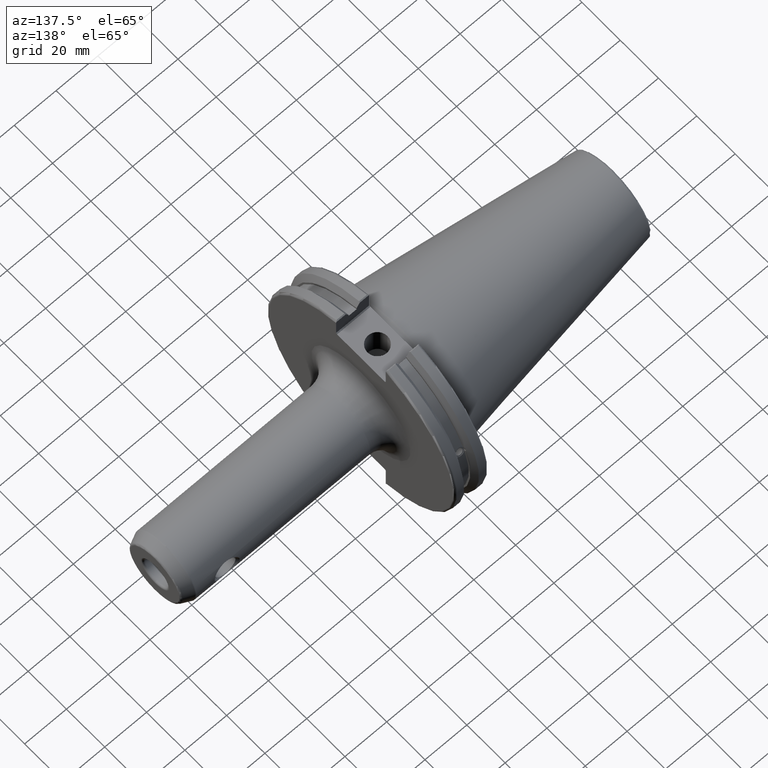
[diagram: clean part render]
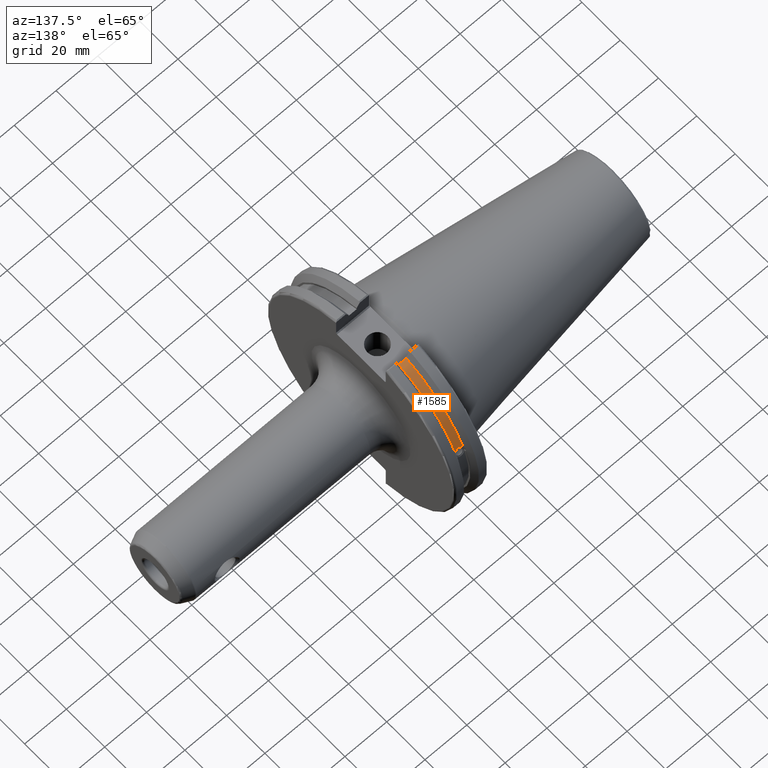
[diagram: same view with one face highlighted and labeled with its STEP entity id]
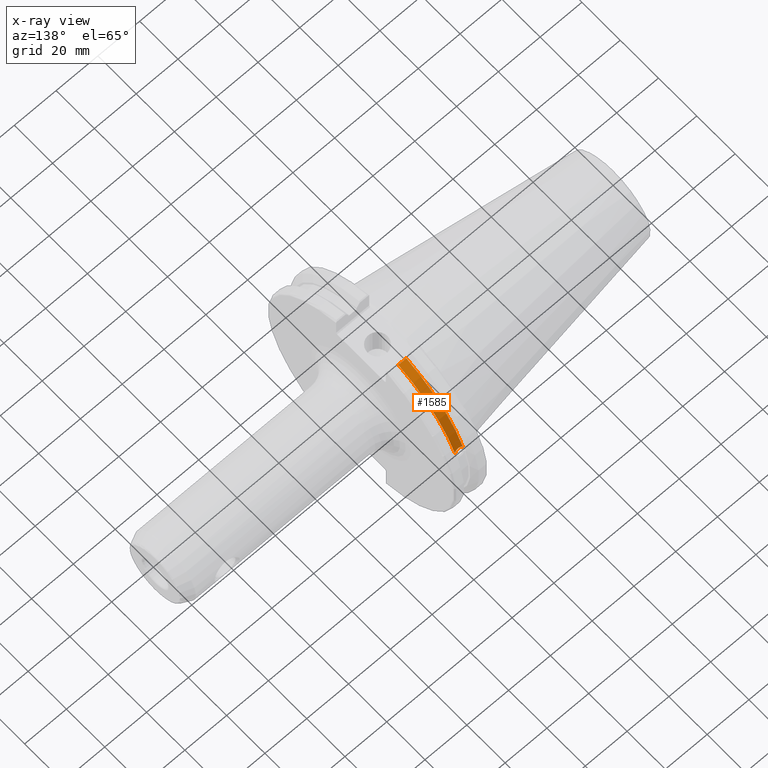
[diagram: x-ray of the same camera — body ghosted, the highlighted face saturated]
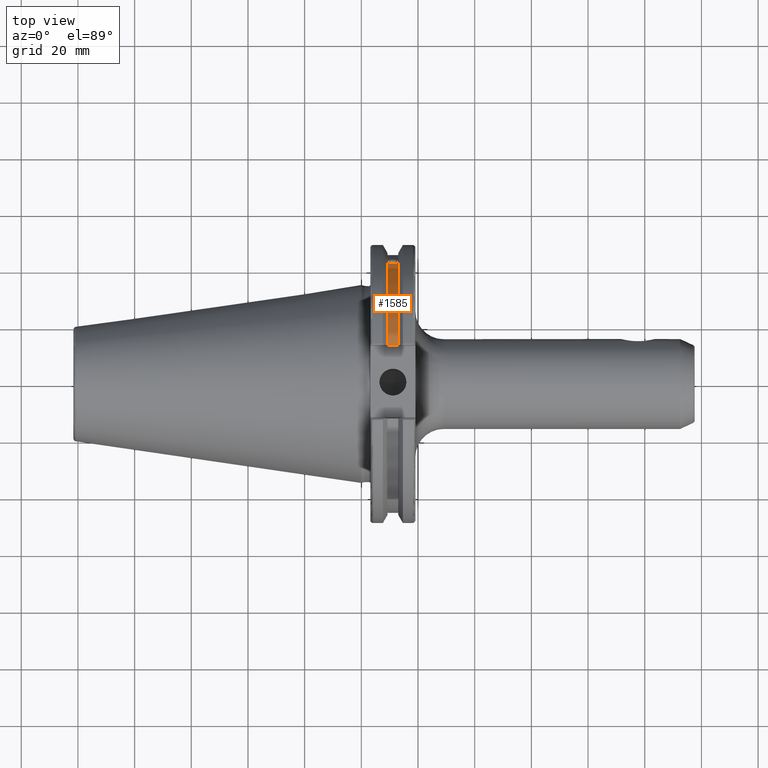
[diagram: same view with one face highlighted and labeled with its STEP entity id]
A machine part, auxiliary view. The second image highlights one B-rep face of the part: STEP entity #1585.
The next image is the same camera in x-ray: the body ghosted, the highlighted face saturated — about 0% of this face is hidden behind the body in this view.
A second angle (top view) of the same face is appended — the face is thin or edge-on in the first view.
In plain terms, the highlighted cylindrical surface (partial cylindrical patch) has radius 45.6435 mm, axis along (1, 0, 0).
Its self-contained STEP definition (entity closure, byte-faithful):
#192=FACE_OUTER_BOUND('',#299,.T.);
#299=EDGE_LOOP('',(#1434,#1435,#1436,#1437));
#336=B_SPLINE_CURVE_WITH_KNOTS('',3,(#2848,#2849,#2850,#2851,#2852,#2853,
#2854,#2855,#2856,#2857,#2858,#2859,#2860,#2861,#2862),.UNSPECIFIED.,.F.,
 .F.,(4,2,2,3,2,2,4),(-0.231381164054416,-0.158232381135623,-0.0791161905678115,
0.,0.0791161905678115,0.158232381135623,0.231381164054563),
 .UNSPECIFIED.);
#436=LINE('',#3199,#530);
#530=VECTOR('',#2147,10.);
#615=CIRCLE('',#1771,45.6435);
#616=CIRCLE('',#1773,45.6435);
#702=VERTEX_POINT('',#2845);
#703=VERTEX_POINT('',#2847);
#771=VERTEX_POINT('',#3196);
#772=VERTEX_POINT('',#3198);
#882=EDGE_CURVE('',#703,#702,#336,.T.);
#989=EDGE_CURVE('',#772,#771,#436,.T.);
#1003=EDGE_CURVE('',#703,#771,#615,.T.);
#1004=EDGE_CURVE('',#702,#772,#616,.T.);
#1434=ORIENTED_EDGE('',*,*,#882,.T.);
#1435=ORIENTED_EDGE('',*,*,#1004,.T.);
#1436=ORIENTED_EDGE('',*,*,#989,.T.);
#1437=ORIENTED_EDGE('',*,*,#1003,.F.);
#1505=CYLINDRICAL_SURFACE('',#1772,45.6435);
#1585=ADVANCED_FACE('',(#192),#1505,.T.);
#1771=AXIS2_PLACEMENT_3D('',#3230,#2186,#2187);
#1772=AXIS2_PLACEMENT_3D('',#3231,#2188,#2189);
#1773=AXIS2_PLACEMENT_3D('',#3232,#2190,#2191);
#2147=DIRECTION('',(1.,0.,0.));
#2186=DIRECTION('center_axis',(1.,0.,0.));
#2187=DIRECTION('ref_axis',(0.,0.,-1.));
#2188=DIRECTION('center_axis',(1.,0.,0.));
#2189=DIRECTION('ref_axis',(0.,1.,0.));
#2190=DIRECTION('center_axis',(1.,0.,0.));
#2191=DIRECTION('ref_axis',(0.,0.,-1.));
#2845=CARTESIAN_POINT('',(9.2191,42.5884454651059,16.4180816515115));
#2847=CARTESIAN_POINT('',(13.0491,42.5884454651059,16.4180816515115));
#2848=CARTESIAN_POINT('Ctrl Pts',(13.0491,42.5884454651059,16.4180816515115));
#2849=CARTESIAN_POINT('Ctrl Pts',(12.9428782240206,42.5035323832641,16.6383458840848));
#2850=CARTESIAN_POINT('Ctrl Pts',(12.791391924423,42.4245077186417,16.8380515255915));
#2851=CARTESIAN_POINT('Ctrl Pts',(12.4325949659982,42.2908173017388,17.1712159412199));
#2852=CARTESIAN_POINT('Ctrl Pts',(12.1964796719457,42.2294695309474,17.3208689126276));
#2853=CARTESIAN_POINT('Ctrl Pts',(11.6790940832128,42.1475978938586,17.5191491957165));
#2854=CARTESIAN_POINT('Ctrl Pts',(11.397820635226,42.1271980081205,17.5678194501937));
#2855=CARTESIAN_POINT('Ctrl Pts',(11.1341,42.1271980081205,17.5678194501937));
#2856=CARTESIAN_POINT('Ctrl Pts',(10.870379364774,42.1271980081205,17.5678194501937));
#2857=CARTESIAN_POINT('Ctrl Pts',(10.5891059167872,42.1475978938586,17.5191491957165));
#2858=CARTESIAN_POINT('Ctrl Pts',(10.0717203280543,42.2294695309474,17.3208689126276));
#2859=CARTESIAN_POINT('Ctrl Pts',(9.83560503400179,42.2908173017388,17.1712159412199));
#2860=CARTESIAN_POINT('Ctrl Pts',(9.47680807557666,42.4245077186418,16.8380515255912));
#2861=CARTESIAN_POINT('Ctrl Pts',(9.32532177598177,42.5035323832622,16.6383458840897));
#2862=CARTESIAN_POINT('Ctrl Pts',(9.2191,42.5884454651059,16.4180816515115));
#3196=CARTESIAN_POINT('',(13.0491,12.95,43.7678716897452));
#3198=CARTESIAN_POINT('',(9.2191,12.95,43.7678716897452));
#3199=CARTESIAN_POINT('',(11.1341,12.95,43.7678716897452));
#3230=CARTESIAN_POINT('Origin',(13.0491,0.,0.));
#3231=CARTESIAN_POINT('Origin',(11.1341,0.,0.));
#3232=CARTESIAN_POINT('Origin',(9.2191,0.,0.));